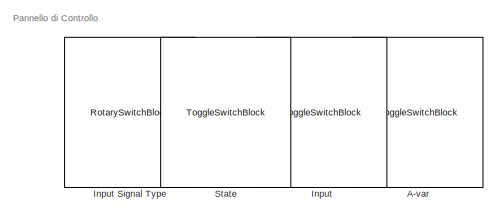
[diagram: root canvas - part 1/2, top center region]
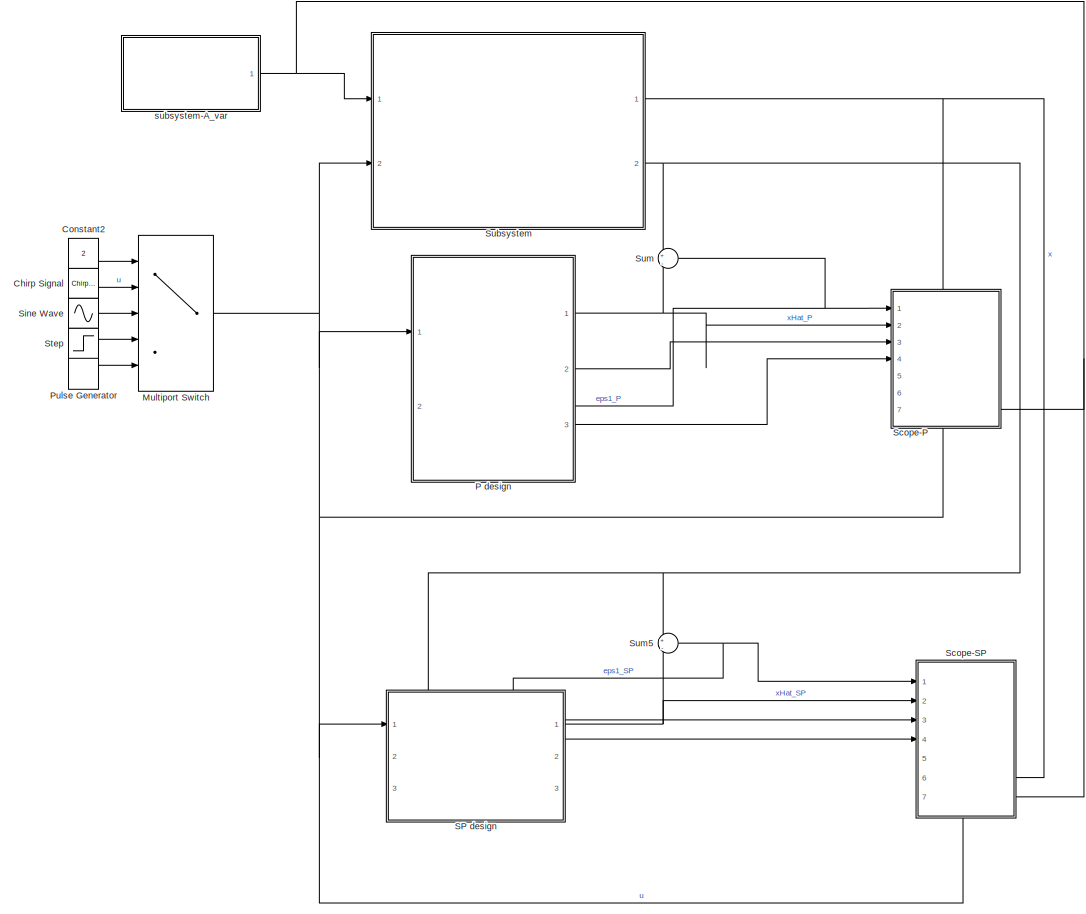
[diagram: root canvas - part 2/2, most of the canvas]
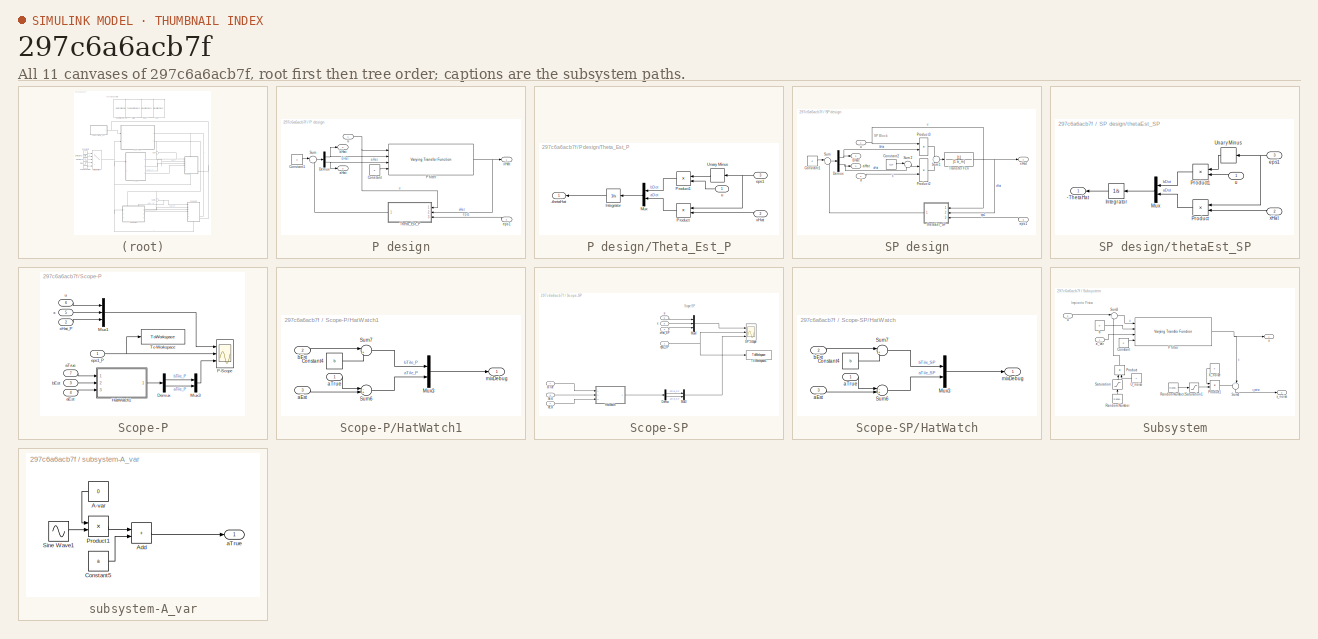
[diagram: thumbnail index - all 11 canvases of the model, root first then tree order]
MODEL slx_297c6a6acb7f
KIND model
CONFIG AbsTol = auto
CONFIG EnableMultiTasking = off
CONFIG FixedStep = 0.01
CONFIG InitFcn = variableLoad
CONFIG MaxStep = auto
CONFIG MinStep = auto
CONFIG RelTol = 1e-3
CONFIG SampleTimeConstraint = Unconstrained
CONFIG Solver = FixedStepAuto
CONFIG SolverName = FixedStepAuto
CONFIG StartTime = 0.0
CONFIG StopFcn = fftEpsStudies
CONFIG StopTime = 100
BLOCK [ToggleSwitchBlock] A-var 
  LabelPosition = Hide
BLOCK [Reference] Chirp Signal  REF=simulink/Sources/Chirp Signal
  Ports = [0, 1]
  SourceBlock = simulink/Sources/Chirp Signal
  SourceProductBaseCode = SL
  SourceType = chirp
BLOCK [Constant] Constant2
  Value = 2
BLOCK [ToggleSwitchBlock] Input
  LabelPosition = Hide
BLOCK [RotarySwitchBlock] Input Signal Type
  LabelPosition = Hide
BLOCK [MultiPortSwitch] Multiport Switch
  DataPortIndices = {1,2,3,4}
  DataPortOrder = Specify indices
  InputSameDT = off
  Ports = [5, 1]
  SaturateOnIntegerOverflow = off
BLOCK [SubSystem] P design
  PortSchema = {"entries":[{"content":{"sides":[{"content":{"connectorIds":["In1"]},"type":"ConnectorPlacement.EquallySpacedRectSide","uuid":"362024cd-f476-4cbe-a7e8-8882176d3543"},{"content":{"connectorIds":["Out1","In2","Out2","Out3"],"side":"RIGHT"},"type":"ConnectorPlacement.EquallySpacedRectSide","uuid":"5c7a91bd-f98f-4f7b-bf90-3fa76e60bd8f"},{"content":{"connectorIds":[],"side":"TOP"},"type":"ConnectorPlac...<+262ch>
  Ports = [2, 3]
  RequestExecContextInheritance = off
BLOCK [Constant] P design/Constant
  Value = 0
BLOCK [Constant] P design/Constant1
  Value = 0
BLOCK [Demux] P design/Demux
  Outputs = 2
  Ports = [1, 2]
BLOCK [Reference] P design/P filter  REF=cstblocks/Linear Parameter Varying/Varying Transfer Function
  Ports = [4, 1]
  SourceBlock = cstblocks/Linear Parameter Varying/Varying Transfer Function
  SourceProductBaseCode = CT
  SourceType = Varying Transfer Function
BLOCK [Sum] P design/Sum
  Inputs = |+-
  Ports = [2, 1]
BLOCK [SubSystem] P design/Theta_Est_P
  Ports = [3, 1]
  RequestExecContextInheritance = off
BLOCK [Outport] P design/Theta_Est_P/-thetaHat
  NameLocation = top
BLOCK [Integrator] P design/Theta_Est_P/Integrator
  NameLocation = top
  Ports = [1, 1]
BLOCK [Mux] P design/Theta_Est_P/Mux
  DisplayOption = bar
  Inputs = 2
  NameLocation = top
  Ports = [2, 1]
BLOCK [Product] P design/Theta_Est_P/Product
  Ports = [2, 1]
BLOCK [Product] P design/Theta_Est_P/Product1
  Ports = [2, 1]
BLOCK [UnaryMinus] P design/Theta_Est_P/Unary Minus
  NameLocation = top
BLOCK [Inport] P design/Theta_Est_P/eps1
  Port = 3
BLOCK [Inport] P design/Theta_Est_P/u
  NameLocation = top
BLOCK [Inport] P design/Theta_Est_P/xHat
  NameLocation = top
  Port = 2
BLOCK [Outport] P design/aHat
  Port = 3
BLOCK [Outport] P design/bHat
  Port = 2
BLOCK [Inport] P design/eps1
  Port = 2
BLOCK [Inport] P design/u
BLOCK [Outport] P design/xHat
BLOCK [DiscretePulseGenerator] Pulse Generator
  Amplitude = 10
  Ports = [0, 1]
  PulseType = Time based
  PulseWidth = 5
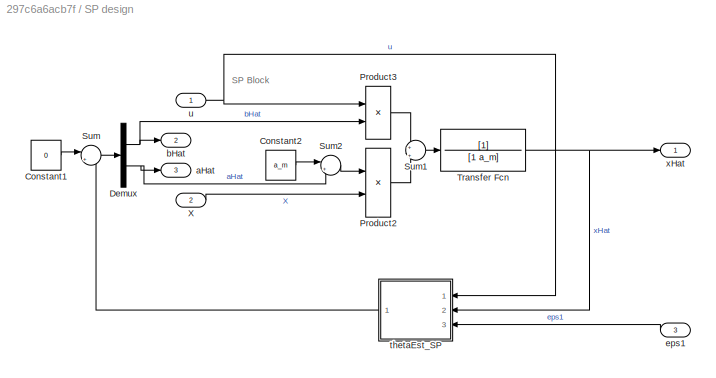
BLOCK [SubSystem] SP design
  PortSchema = {"entries":[{"content":{"sides":[{"content":{"connectorIds":["In1"]},"type":"ConnectorPlacement.EquallySpacedRectSide","uuid":"e9709b4b-489e-426b-86db-a8a5b46a3381"},{"content":{"connectorIds":["Out1","Out2","Out3"],"side":"RIGHT"},"type":"ConnectorPlacement.EquallySpacedRectSide","uuid":"298f9992-e7ab-4ae3-9bf7-5a2add14c94f"},{"content":{"connectorIds":["In2","In3"],"side":"TOP"},"type":"Connecto...<+411ch>
  Ports = [3, 3]
  RequestExecContextInheritance = off
BLOCK [Constant] SP design/Constant1
  Value = 0
BLOCK [Constant] SP design/Constant2
  Value = a_m
BLOCK [Demux] SP design/Demux
  Outputs = 2
  Ports = [1, 2]
BLOCK [Product] SP design/Product2
  Ports = [2, 1]
BLOCK [Product] SP design/Product3
  Ports = [2, 1]
BLOCK [Sum] SP design/Sum
  Inputs = |+-
  Ports = [2, 1]
BLOCK [Sum] SP design/Sum1
  Inputs = +|+
  Ports = [2, 1]
BLOCK [Sum] SP design/Sum2
  Inputs = |+-
  Ports = [2, 1]
BLOCK [TransferFcn] SP design/Transfer Fcn
  Denominator = [1 a_m]
BLOCK [Inport] SP design/X
  Port = 2
BLOCK [Outport] SP design/aHat
  NameLocation = right
  Port = 3
BLOCK [Outport] SP design/bHat
  NameLocation = right
  Port = 2
BLOCK [Inport] SP design/eps1
  Port = 3
BLOCK [SubSystem] SP design/thetaEst_SP
  Ports = [3, 1]
  RequestExecContextInheritance = off
BLOCK [Outport] SP design/thetaEst_SP/-ThetaHat
BLOCK [Integrator] SP design/thetaEst_SP/Integrator
  NameLocation = top
  Ports = [1, 1]
BLOCK [Mux] SP design/thetaEst_SP/Mux
  DisplayOption = bar
  Inputs = 2
  NameLocation = top
  Ports = [2, 1]
BLOCK [Product] SP design/thetaEst_SP/Product
  Ports = [2, 1]
BLOCK [Product] SP design/thetaEst_SP/Product1
  Ports = [2, 1]
BLOCK [UnaryMinus] SP design/thetaEst_SP/Unary Minus
  NameLocation = top
BLOCK [Inport] SP design/thetaEst_SP/eps1
  Port = 3
BLOCK [Inport] SP design/thetaEst_SP/u
  NameLocation = top
BLOCK [Inport] SP design/thetaEst_SP/xHat
  NameLocation = top
  Port = 2
BLOCK [Inport] SP design/u
BLOCK [Outport] SP design/xHat
BLOCK [SubSystem] Scope-P
  PortSchema = {"entries":[{"content":{"sides":[{"content":{"connectorIds":["In1","In2","In3","In4"]},"type":"ConnectorPlacement.EquallySpacedRectSide","uuid":"539ce4fe-1cde-48fc-8a25-4b170603f283"},{"content":{"connectorIds":["In7"],"side":"RIGHT"},"type":"ConnectorPlacement.EquallySpacedRectSide","uuid":"e3f83a5b-db67-4f03-8403-debd32f7f726"},{"content":{"connectorIds":["In5"],"side":"TOP"},"type":"ConnectorPl...<+413ch>
  Ports = [7]
  RequestExecContextInheritance = off
BLOCK [Demux] Scope-P/Demux
  Outputs = 2
  Ports = [1, 2]
BLOCK [SubSystem] Scope-P/HatWatch1
  Ports = [3, 1]
  RequestExecContextInheritance = off
BLOCK [Constant] Scope-P/HatWatch1/Constant4
  Value = b
BLOCK [Mux] Scope-P/HatWatch1/Mux3
  DisplayOption = bar
  Inputs = 2
  Ports = [2, 1]
BLOCK [Sum] Scope-P/HatWatch1/Sum6
  Inputs = -+|
  Ports = [2, 1]
BLOCK [Sum] Scope-P/HatWatch1/Sum7
  Inputs = |+-
  NameLocation = top
  Ports = [2, 1]
BLOCK [Inport] Scope-P/HatWatch1/aEst
  Port = 3
BLOCK [Inport] Scope-P/HatWatch1/aTrue
BLOCK [Inport] Scope-P/HatWatch1/bEst
  Port = 2
BLOCK [Outport] Scope-P/HatWatch1/mixDebug
BLOCK [Mux] Scope-P/Mux1
  DisplayOption = bar
  Inputs = 3
  Ports = [3, 1]
BLOCK [Mux] Scope-P/Mux3
  DisplayOption = bar
  Inputs = 2
  Ports = [2, 1]
BLOCK [Scope] Scope-P/P-Scope
  Floating = off
  NumInputPorts = 3
  Ports = [3]
  ScopeSpecificationString = Simulink.scopes.TimeScopeBlockCfg('CurrentConfiguration', extmgr.ConfigurationSet(extmgr.Configuration('Core','General UI',true),extmgr.Configuration('Core','Source UI',true),extmgr.Configuration('Sources','WiredSimulink',true),extmgr.Configuration('Visuals','Time Domain',true,'SerializedDisplays',{struct('MinYLimReal','-4.75134','MaxYLimReal','8.85609','YLabelReal','','MinYLimMag','0.00000','MaxY...<+2731ch>
BLOCK [ToWorkspace] Scope-P/To Workspace
  FixptAsFi = on
  MaxDataPoints = inf
  Ports = [1]
  SampleTime = -1
  SaveFormat = Timeseries
  VariableName = eps1_p
BLOCK [Inport] Scope-P/aEst
  NameLocation = left
  Port = 4
BLOCK [Inport] Scope-P/aTrue
  NameLocation = left
  Port = 7
BLOCK [Inport] Scope-P/bEst
  NameLocation = left
  Port = 3
BLOCK [Inport] Scope-P/eps1_P
  NameLocation = top
BLOCK [Inport] Scope-P/u
  NameLocation = left
  Port = 6
BLOCK [Inport] Scope-P/x
  NameLocation = left
  Port = 5
BLOCK [Inport] Scope-P/xHat_P
  NameLocation = left
  Port = 2
BLOCK [SubSystem] Scope-SP
  PortSchema = {"entries":[{"content":{"sides":[{"content":{"connectorIds":["In1","In2","In3","In4"]},"type":"ConnectorPlacement.EquallySpacedRectSide","uuid":"539ce4fe-1cde-48fc-8a25-4b170603f283"},{"content":{"connectorIds":["In6","In7"],"side":"RIGHT"},"type":"ConnectorPlacement.EquallySpacedRectSide","uuid":"e3f83a5b-db67-4f03-8403-debd32f7f726"},{"content":{"connectorIds":[],"side":"TOP"},"type":"ConnectorP...<+414ch>
  Ports = [7]
  RequestExecContextInheritance = off
BLOCK [Demux] Scope-SP/Demux
  Outputs = 2
  Ports = [1, 2]
BLOCK [SubSystem] Scope-SP/HatWatch
  Ports = [3, 1]
  RequestExecContextInheritance = off
BLOCK [Constant] Scope-SP/HatWatch/Constant4
  Value = b
BLOCK [Mux] Scope-SP/HatWatch/Mux3
  DisplayOption = bar
  Inputs = 2
  Ports = [2, 1]
BLOCK [Sum] Scope-SP/HatWatch/Sum6
  Inputs = -+|
  Ports = [2, 1]
BLOCK [Sum] Scope-SP/HatWatch/Sum7
  Inputs = |+-
  NameLocation = top
  Ports = [2, 1]
BLOCK [Inport] Scope-SP/HatWatch/aEst
  Port = 3
BLOCK [Inport] Scope-SP/HatWatch/aTrue
BLOCK [Inport] Scope-SP/HatWatch/bEst
  Port = 2
BLOCK [Outport] Scope-SP/HatWatch/mixDebug
BLOCK [Mux] Scope-SP/Mux3
  DisplayOption = bar
  Inputs = 2
  Ports = [2, 1]
BLOCK [Mux] Scope-SP/Mux4
  DisplayOption = bar
  Inputs = 3
  Ports = [3, 1]
BLOCK [Scope] Scope-SP/SP-Scope
  Floating = off
  NumInputPorts = 3
  Ports = [3]
  ScopeSpecificationString = Simulink.scopes.TimeScopeBlockCfg('CurrentConfiguration', extmgr.ConfigurationSet(extmgr.Configuration('Core','General UI',true),extmgr.Configuration('Core','Source UI',true),extmgr.Configuration('Sources','WiredSimulink',true,'DataLoggingVariableName','ScopeData1'),extmgr.Configuration('Visuals','Time Domain',true,'SerializedDisplays',{struct('MinYLimReal','-1.69393','MaxYLimReal','5.24536','YLab...<+2831ch>
BLOCK [ToWorkspace] Scope-SP/To Workspace1
  FixptAsFi = on
  MaxDataPoints = inf
  Ports = [1]
  SampleTime = -1
  SaveFormat = Timeseries
  VariableName = eps1_sp
BLOCK [Inport] Scope-SP/aEst
  Port = 4
BLOCK [Inport] Scope-SP/aTrue
  Port = 7
BLOCK [Inport] Scope-SP/bEst
  Port = 3
BLOCK [Inport] Scope-SP/eps1_SP
  NameLocation = left
BLOCK [Inport] Scope-SP/u
  NameLocation = left
  Port = 5
BLOCK [Inport] Scope-SP/x
  NameLocation = left
  Port = 6
BLOCK [Inport] Scope-SP/xHat_SP
  NameLocation = left
  Port = 2
BLOCK [Sin] Sine Wave
  Ports = [0, 1]
  SampleTime = 0
BLOCK [ToggleSwitchBlock] State
  LabelPosition = Hide
BLOCK [Step] Step
  SampleTime = 0
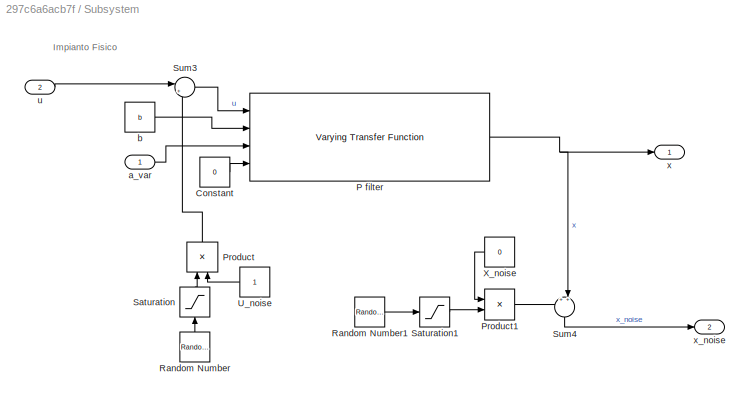
BLOCK [SubSystem] Subsystem
  Ports = [2, 2]
  RequestExecContextInheritance = off
BLOCK [Constant] Subsystem/Constant
  Value = 0
BLOCK [Reference] Subsystem/P filter  REF=cstblocks/Linear Parameter Varying/Varying Transfer Function
  Ports = [4, 1]
  SourceBlock = cstblocks/Linear Parameter Varying/Varying Transfer Function
  SourceProductBaseCode = CT
  SourceType = Varying Transfer Function
BLOCK [Product] Subsystem/Product
  NameLocation = right
  Ports = [2, 1]
BLOCK [Product] Subsystem/Product1
  Ports = [2, 1]
BLOCK [RandomNumber] Subsystem/Random Number
  Mean = eMean
  NameLocation = right
  SampleTime = 0.1
  Variance = eMax
BLOCK [RandomNumber] Subsystem/Random Number1
  Mean = eMean
  SampleTime = 0.1
  Variance = eMax
BLOCK [Saturate] Subsystem/Saturation
  LowerLimit = -(eMax+ eMean)
  NameLocation = right
  UpperLimit = (eMax+ eMean)
BLOCK [Saturate] Subsystem/Saturation1
  LowerLimit = -(eMax+ eMean)
  UpperLimit = (eMax+ eMean)
BLOCK [Sum] Subsystem/Sum3
  Inputs = |++
  Ports = [2, 1]
BLOCK [Sum] Subsystem/Sum4
  Inputs = ++|
  NameLocation = left
  Ports = [2, 1]
BLOCK [Constant] Subsystem/U_noise
  NameLocation = top
BLOCK [Constant] Subsystem/X_noise
  NameLocation = top
  Value = 0
BLOCK [Inport] Subsystem/a_var
BLOCK [Constant] Subsystem/b
  Value = b
BLOCK [Inport] Subsystem/u
  Port = 2
BLOCK [Outport] Subsystem/x
BLOCK [Outport] Subsystem/x_noise
  Port = 2
BLOCK [Sum] Sum
  Inputs = +|-
  Ports = [2, 1]
BLOCK [Sum] Sum5
  Inputs = +|-
  Ports = [2, 1]
BLOCK [SubSystem] subsystem-A_var
  Ports = [0, 1]
  RequestExecContextInheritance = off
BLOCK [Constant] subsystem-A_var/A-var
  NameLocation = top
  Value = 0
BLOCK [Sum] subsystem-A_var/Add
  IconShape = rectangular
  Ports = [2, 1]
BLOCK [Constant] subsystem-A_var/Constant5
  Value = a
BLOCK [Product] subsystem-A_var/Product1
  Ports = [2, 1]
BLOCK [Sin] subsystem-A_var/Sine Wave1
  Amplitude = a_ampl
  Frequency = a_varFreq
  Ports = [0, 1]
  SampleTime = 0
BLOCK [Outport] subsystem-A_var/aTrue
ANNOTATION (root): Pannello di Controllo
ANNOTATION SP design: SP Block
ANNOTATION Scope-SP: Scope SP
ANNOTATION Subsystem: Impianto Fisico
LINE Chirp Signal:1 -> Multiport Switch:2
LINE Constant2:1 -> Multiport Switch:1
NET Multiport Switch:1 -> P design:1, SP design:1, Scope-P:6, Scope-SP:5, Subsystem:2
LINE P design/Constant1:1 -> P design/Sum:1
LINE P design/Constant:1 -> P design/P filter:4
NET P design/Demux:1 -> P design/P filter:2, P design/bHat:1
NET P design/Demux:2 -> P design/P filter:3, P design/aHat:1
NET P design/P filter:1 -> P design/Theta_Est_P:2, P design/xHat:1
LINE P design/Sum:1 -> P design/Demux:1
LINE P design/Theta_Est_P/Integrator:1 -> P design/Theta_Est_P/-thetaHat:1
LINE P design/Theta_Est_P/Mux:1 -> P design/Theta_Est_P/Integrator:1
LINE P design/Theta_Est_P/Product1:1 -> P design/Theta_Est_P/Mux:1
LINE P design/Theta_Est_P/Product:1 -> P design/Theta_Est_P/Mux:2
LINE P design/Theta_Est_P/Unary Minus:1 -> P design/Theta_Est_P/Product1:1
NET P design/Theta_Est_P/eps1:1 -> P design/Theta_Est_P/Product:1, P design/Theta_Est_P/Unary Minus:1
LINE P design/Theta_Est_P/u:1 -> P design/Theta_Est_P/Product1:2
LINE P design/Theta_Est_P/xHat:1 -> P design/Theta_Est_P/Product:2
LINE P design/Theta_Est_P:1 -> P design/Sum:2
LINE P design/eps1:1 -> P design/Theta_Est_P:3
NET P design/u:1 -> P design/P filter:1, P design/Theta_Est_P:1
NET P design:1 -> Scope-P:2, Sum:2
LINE P design:2 -> Scope-P:3
LINE P design:3 -> Scope-P:4
LINE Pulse Generator:1 -> Multiport Switch:5
LINE SP design/Constant1:1 -> SP design/Sum:1
LINE SP design/Constant2:1 -> SP design/Sum2:1
NET SP design/Demux:1 -> SP design/Product3:2, SP design/bHat:1
NET SP design/Demux:2 -> SP design/Sum2:2, SP design/aHat:1
LINE SP design/Product2:1 -> SP design/Sum1:2
LINE SP design/Product3:1 -> SP design/Sum1:1
LINE SP design/Sum1:1 -> SP design/Transfer Fcn:1
LINE SP design/Sum2:1 -> SP design/Product2:1
LINE SP design/Sum:1 -> SP design/Demux:1
NET SP design/Transfer Fcn:1 -> SP design/thetaEst_SP:2, SP design/xHat:1
LINE SP design/X:1 -> SP design/Product2:2
LINE SP design/eps1:1 -> SP design/thetaEst_SP:3
LINE SP design/thetaEst_SP/Integrator:1 -> SP design/thetaEst_SP/-ThetaHat:1
LINE SP design/thetaEst_SP/Mux:1 -> SP design/thetaEst_SP/Integrator:1
LINE SP design/thetaEst_SP/Product1:1 -> SP design/thetaEst_SP/Mux:1
LINE SP design/thetaEst_SP/Product:1 -> SP design/thetaEst_SP/Mux:2
LINE SP design/thetaEst_SP/Unary Minus:1 -> SP design/thetaEst_SP/Product1:1
NET SP design/thetaEst_SP/eps1:1 -> SP design/thetaEst_SP/Product:1, SP design/thetaEst_SP/Unary Minus:1
LINE SP design/thetaEst_SP/u:1 -> SP design/thetaEst_SP/Product1:2
LINE SP design/thetaEst_SP/xHat:1 -> SP design/thetaEst_SP/Product:2
LINE SP design/thetaEst_SP:1 -> SP design/Sum:2
NET SP design/u:1 -> SP design/Product3:1, SP design/thetaEst_SP:1
NET SP design:1 -> Scope-SP:2, Sum5:2
LINE SP design:2 -> Scope-SP:3
LINE SP design:3 -> Scope-SP:4
LINE Scope-P/Demux:1 -> Scope-P/Mux3:1
LINE Scope-P/Demux:2 -> Scope-P/Mux3:2
LINE Scope-P/HatWatch1/Constant4:1 -> Scope-P/HatWatch1/Sum7:2
LINE Scope-P/HatWatch1/Mux3:1 -> Scope-P/HatWatch1/mixDebug:1
LINE Scope-P/HatWatch1/Sum6:1 -> Scope-P/HatWatch1/Mux3:2
LINE Scope-P/HatWatch1/Sum7:1 -> Scope-P/HatWatch1/Mux3:1
LINE Scope-P/HatWatch1/aEst:1 -> Scope-P/HatWatch1/Sum6:2
LINE Scope-P/HatWatch1/aTrue:1 -> Scope-P/HatWatch1/Sum6:1
LINE Scope-P/HatWatch1/bEst:1 -> Scope-P/HatWatch1/Sum7:1
LINE Scope-P/HatWatch1:1 -> Scope-P/Demux:1
LINE Scope-P/Mux1:1 -> Scope-P/P-Scope:1
LINE Scope-P/Mux3:1 -> Scope-P/P-Scope:3
LINE Scope-P/aEst:1 -> Scope-P/HatWatch1:3
LINE Scope-P/aTrue:1 -> Scope-P/HatWatch1:1
LINE Scope-P/bEst:1 -> Scope-P/HatWatch1:2
NET Scope-P/eps1_P:1 -> Scope-P/P-Scope:2, Scope-P/To Workspace:1
LINE Scope-P/u:1 -> Scope-P/Mux1:1
LINE Scope-P/x:1 -> Scope-P/Mux1:2
LINE Scope-P/xHat_P:1 -> Scope-P/Mux1:3
LINE Scope-SP/Demux:1 -> Scope-SP/Mux3:1
LINE Scope-SP/Demux:2 -> Scope-SP/Mux3:2
LINE Scope-SP/HatWatch/Constant4:1 -> Scope-SP/HatWatch/Sum7:2
LINE Scope-SP/HatWatch/Mux3:1 -> Scope-SP/HatWatch/mixDebug:1
LINE Scope-SP/HatWatch/Sum6:1 -> Scope-SP/HatWatch/Mux3:2
LINE Scope-SP/HatWatch/Sum7:1 -> Scope-SP/HatWatch/Mux3:1
LINE Scope-SP/HatWatch/aEst:1 -> Scope-SP/HatWatch/Sum6:2
LINE Scope-SP/HatWatch/aTrue:1 -> Scope-SP/HatWatch/Sum6:1
LINE Scope-SP/HatWatch/bEst:1 -> Scope-SP/HatWatch/Sum7:1
LINE Scope-SP/HatWatch:1 -> Scope-SP/Demux:1
LINE Scope-SP/Mux3:1 -> Scope-SP/SP-Scope:3
LINE Scope-SP/Mux4:1 -> Scope-SP/SP-Scope:1
LINE Scope-SP/aEst:1 -> Scope-SP/HatWatch:3
LINE Scope-SP/aTrue:1 -> Scope-SP/HatWatch:1
LINE Scope-SP/bEst:1 -> Scope-SP/HatWatch:2
NET Scope-SP/eps1_SP:1 -> Scope-SP/SP-Scope:2, Scope-SP/To Workspace1:1
LINE Scope-SP/u:1 -> Scope-SP/Mux4:1
LINE Scope-SP/x:1 -> Scope-SP/Mux4:2
LINE Scope-SP/xHat_SP:1 -> Scope-SP/Mux4:3
LINE Sine Wave:1 -> Multiport Switch:3
LINE Step:1 -> Multiport Switch:4
LINE Subsystem/Constant:1 -> Subsystem/P filter:4
NET Subsystem/P filter:1 -> Subsystem/Sum4:2, Subsystem/x:1
LINE Subsystem/Product1:1 -> Subsystem/Sum4:1
LINE Subsystem/Product:1 -> Subsystem/Sum3:2
LINE Subsystem/Random Number1:1 -> Subsystem/Saturation1:1
LINE Subsystem/Random Number:1 -> Subsystem/Saturation:1
LINE Subsystem/Saturation1:1 -> Subsystem/Product1:2
LINE Subsystem/Saturation:1 -> Subsystem/Product:1
LINE Subsystem/Sum3:1 -> Subsystem/P filter:1
LINE Subsystem/Sum4:1 -> Subsystem/x_noise:1
LINE Subsystem/U_noise:1 -> Subsystem/Product:2
LINE Subsystem/X_noise:1 -> Subsystem/Product1:1
LINE Subsystem/a_var:1 -> Subsystem/P filter:3
LINE Subsystem/b:1 -> Subsystem/P filter:2
LINE Subsystem/u:1 -> Subsystem/Sum3:1
NET Subsystem:1 -> Scope-P:5, Scope-SP:6
NET Subsystem:2 -> SP design:2, Sum5:1, Sum:1
NET Sum5:1 -> SP design:3, Scope-SP:1
NET Sum:1 -> P design:2, Scope-P:1
LINE subsystem-A_var/A-var:1 -> subsystem-A_var/Product1:1
LINE subsystem-A_var/Add:1 -> subsystem-A_var/aTrue:1
LINE subsystem-A_var/Constant5:1 -> subsystem-A_var/Add:2
LINE subsystem-A_var/Product1:1 -> subsystem-A_var/Add:1
LINE subsystem-A_var/Sine Wave1:1 -> subsystem-A_var/Product1:2
NET subsystem-A_var:1 -> Scope-P:7, Scope-SP:7, Subsystem:1
note: NET lines group one-source signal fan-out (src -> all destinations, sorted); 1:1 wires keep LINE
